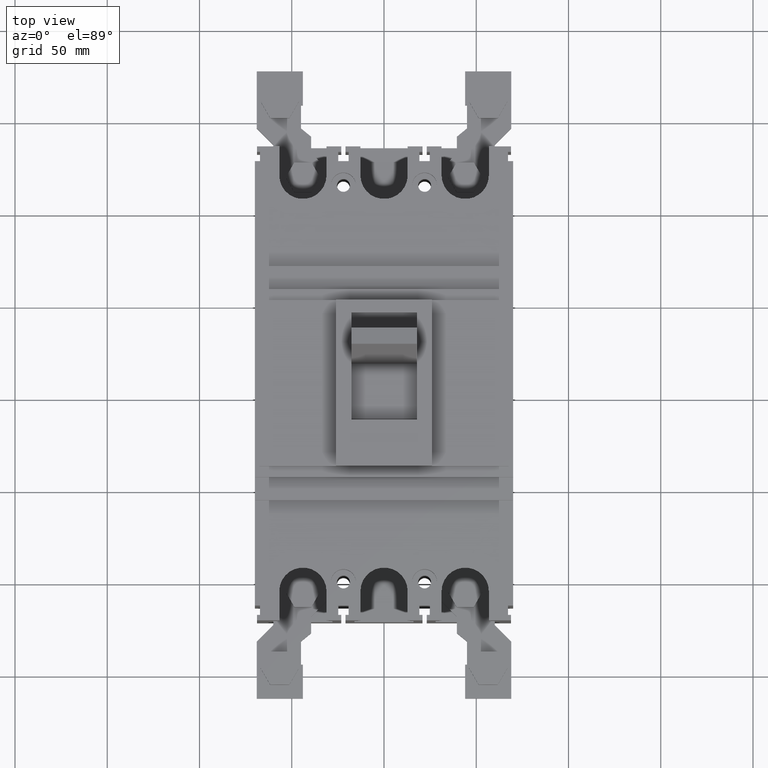
[diagram: clean part render]
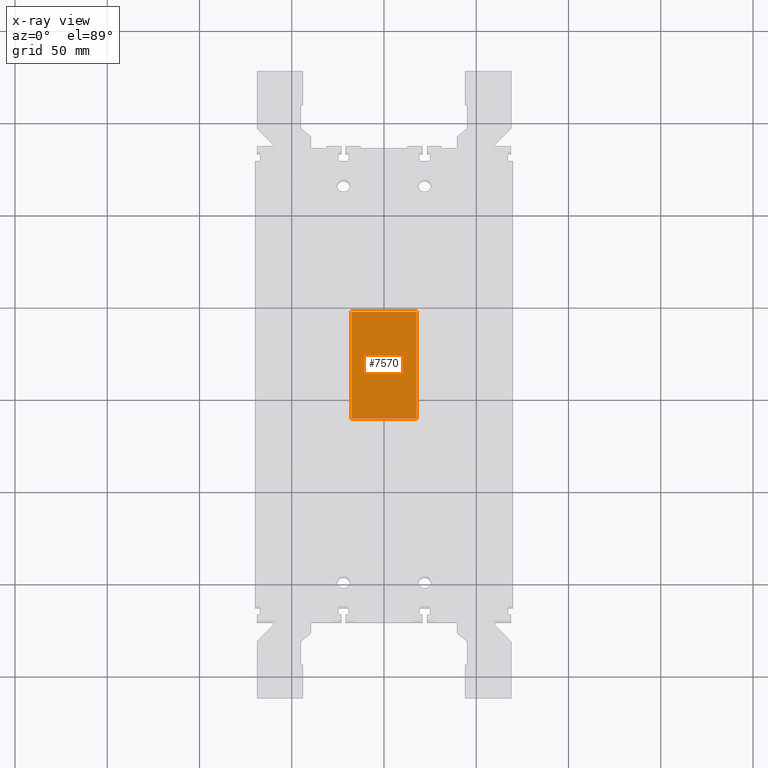
[diagram: x-ray — body ghosted, one internal face saturated and labeled with its STEP entity id]
A machine part, top view, then the same camera in x-ray: the body is ghosted and one INTERNAL B-rep face — a face not visible from any outside direction — is saturated and labeled: STEP entity #7570.
In plain terms, the highlighted planar face has unit normal (0, 0, -1).
Its self-contained STEP definition (entity closure, byte-faithful):
#217 = CARTESIAN_POINT ( 'NONE',  ( 0.6988188976377953665, 3.464566929133858331, 4.232283464566929609 ) ) ;
#810 = CARTESIAN_POINT ( 'NONE',  ( -0.6988188976377953665, 5.748031496062991685, 4.232283464566929609 ) ) ;
#1311 = ORIENTED_EDGE ( 'NONE', *, *, #15556, .T. ) ;
#2194 = DIRECTION ( 'NONE',  ( -1.000000000000000000, 0.0000000000000000000, -0.0000000000000000000 ) ) ;
#2821 = FACE_OUTER_BOUND ( 'NONE', #16554, .T. ) ;
#3237 = PLANE ( 'NONE',  #5923 ) ;
#3252 = VECTOR ( 'NONE', #11816, 39.37007874015748143 ) ;
#3283 = EDGE_CURVE ( 'NONE', #15838, #9922, #9295, .T. ) ;
#3460 = VECTOR ( 'NONE', #10825, 39.37007874015748143 ) ;
#3505 = VECTOR ( 'NONE', #12645, 39.37007874015748143 ) ;
#3948 = DIRECTION ( 'NONE',  ( -0.0000000000000000000, -1.000000000000000000, -0.0000000000000000000 ) ) ;
#4459 = VECTOR ( 'NONE', #3948, 39.37007874015748143 ) ;
#5923 = AXIS2_PLACEMENT_3D ( 'NONE', #14585, #6182, #2194 ) ;
#6182 = DIRECTION ( 'NONE',  ( 0.0000000000000000000, 0.0000000000000000000, -1.000000000000000000 ) ) ;
#6201 = LINE ( 'NONE', #14174, #3505 ) ;
#7570 = ADVANCED_FACE ( 'NONE', ( #2821 ), #3237, .T. ) ;
#8170 = CARTESIAN_POINT ( 'NONE',  ( 0.6988188976377953665, 5.748031496062991685, 4.232283464566929609 ) ) ;
#9295 = LINE ( 'NONE', #18147, #3460 ) ;
#9569 = CARTESIAN_POINT ( 'NONE',  ( -0.6988188976377953665, 3.464566929133858331, 4.232283464566929609 ) ) ;
#9922 = VERTEX_POINT ( 'NONE', #810 ) ;
#10825 = DIRECTION ( 'NONE',  ( 0.0000000000000000000, 1.000000000000000000, 0.0000000000000000000 ) ) ;
#11816 = DIRECTION ( 'NONE',  ( -1.000000000000000000, 0.0000000000000000000, -0.0000000000000000000 ) ) ;
#11890 = EDGE_CURVE ( 'NONE', #15601, #18582, #14141, .T. ) ;
#12645 = DIRECTION ( 'NONE',  ( 1.000000000000000000, -0.0000000000000000000, 0.0000000000000000000 ) ) ;
#12699 = LINE ( 'NONE', #217, #3252 ) ;
#13269 = ORIENTED_EDGE ( 'NONE', *, *, #3283, .T. ) ;
#14076 = CARTESIAN_POINT ( 'NONE',  ( 0.6988188976377953665, 3.464566929133858331, 4.232283464566929609 ) ) ;
#14141 = LINE ( 'NONE', #14076, #4459 ) ;
#14174 = CARTESIAN_POINT ( 'NONE',  ( 0.6988188976377953665, 5.748031496062991685, 4.232283464566929609 ) ) ;
#14585 = CARTESIAN_POINT ( 'NONE',  ( 0.6988188976377953665, 3.464566929133858331, 4.232283464566929609 ) ) ;
#14613 = CARTESIAN_POINT ( 'NONE',  ( 0.6988188976377953665, 3.464566929133858331, 4.232283464566929609 ) ) ;
#15390 = ORIENTED_EDGE ( 'NONE', *, *, #11890, .T. ) ;
#15556 = EDGE_CURVE ( 'NONE', #9922, #15601, #6201, .T. ) ;
#15601 = VERTEX_POINT ( 'NONE', #8170 ) ;
#15838 = VERTEX_POINT ( 'NONE', #9569 ) ;
#16040 = EDGE_CURVE ( 'NONE', #18582, #15838, #12699, .T. ) ;
#16554 = EDGE_LOOP ( 'NONE', ( #15390, #16855, #13269, #1311 ) ) ;
#16855 = ORIENTED_EDGE ( 'NONE', *, *, #16040, .T. ) ;
#18147 = CARTESIAN_POINT ( 'NONE',  ( -0.6988188976377953665, 3.464566929133858331, 4.232283464566929609 ) ) ;
#18582 = VERTEX_POINT ( 'NONE', #14613 ) ;